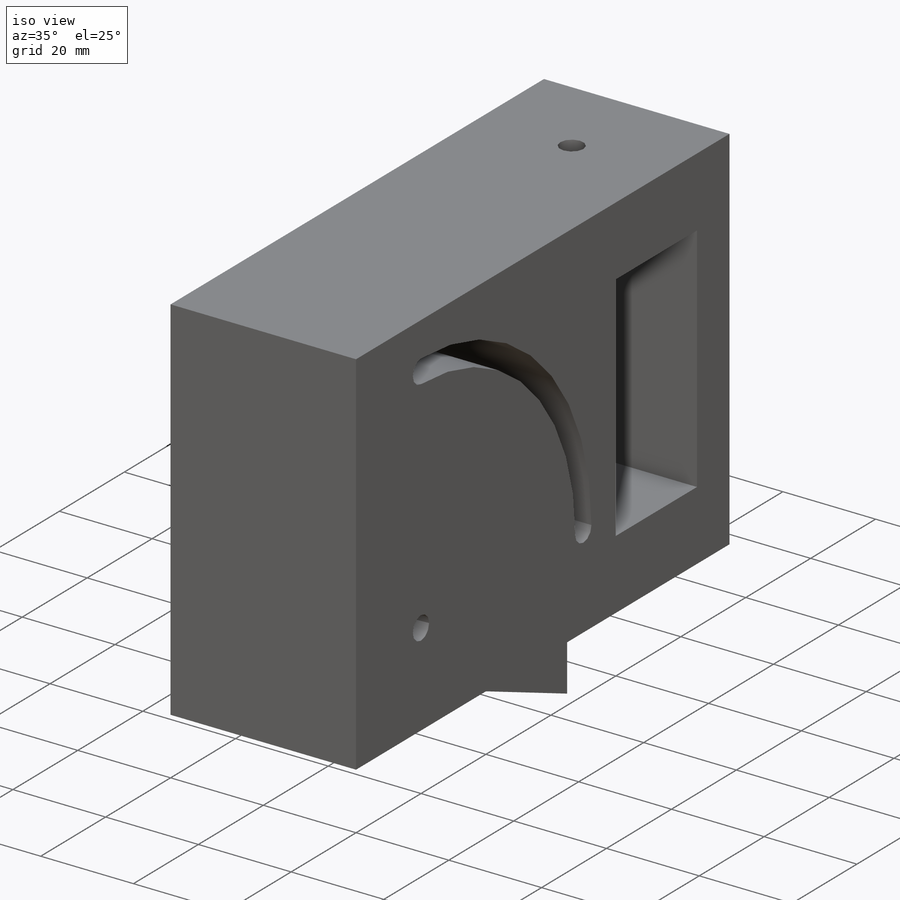
[diagram: iso view]
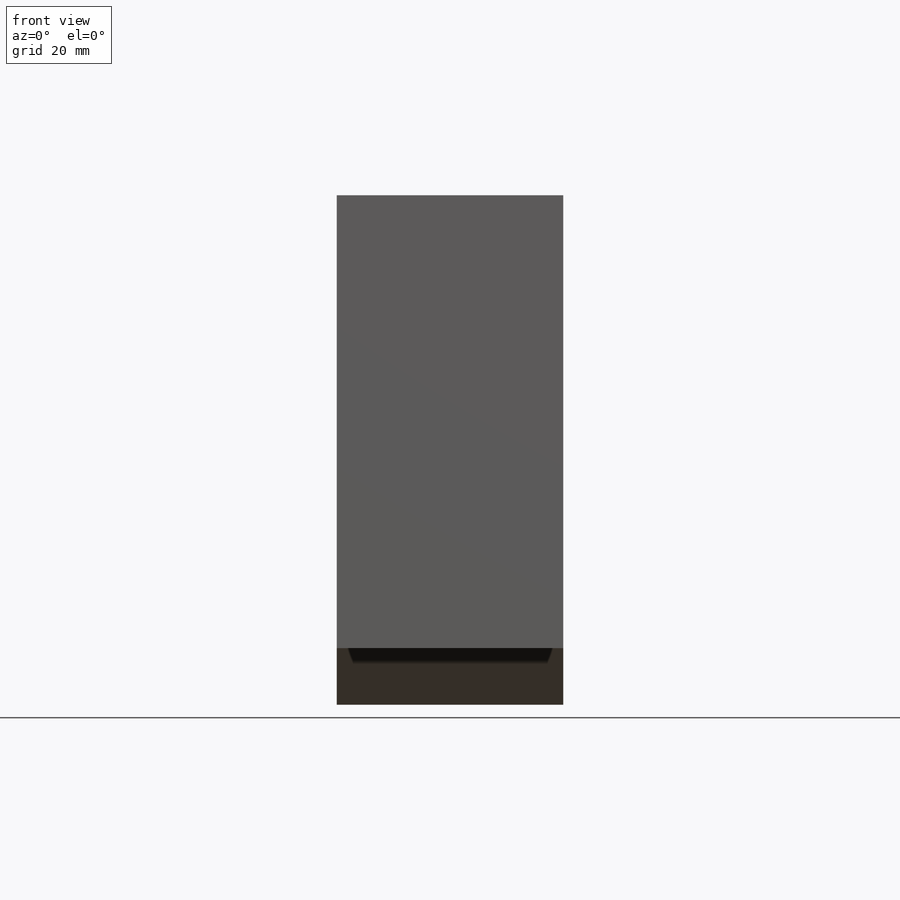
[diagram: front view]
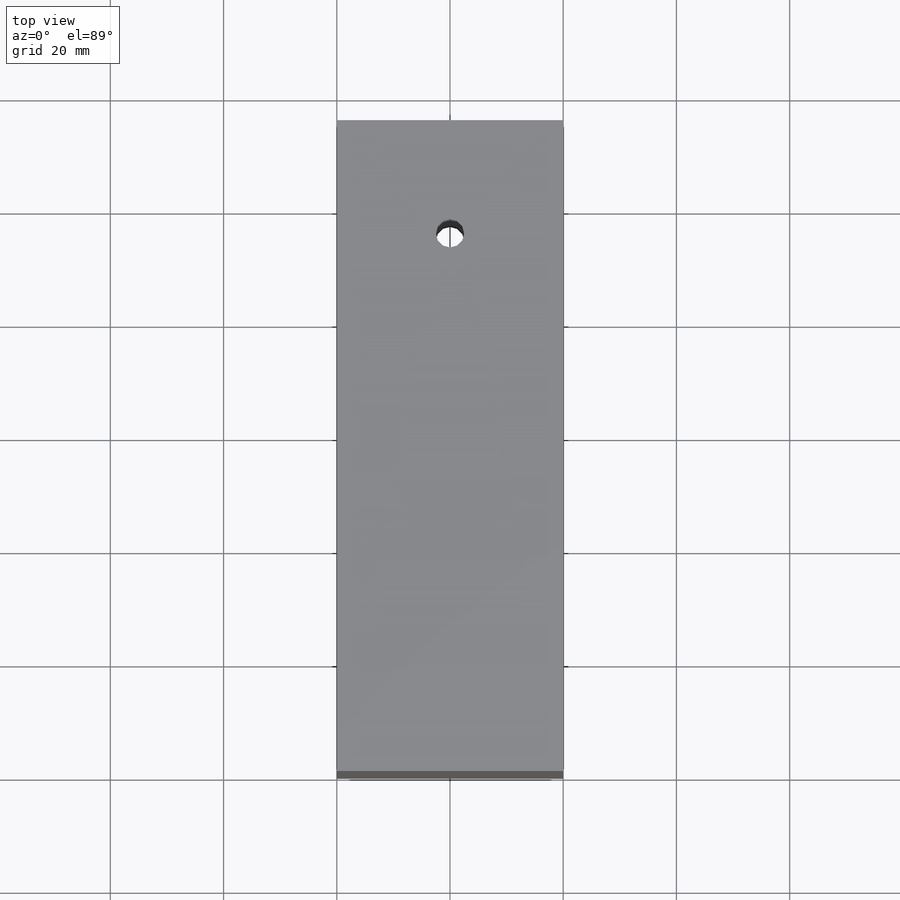
[diagram: top view]
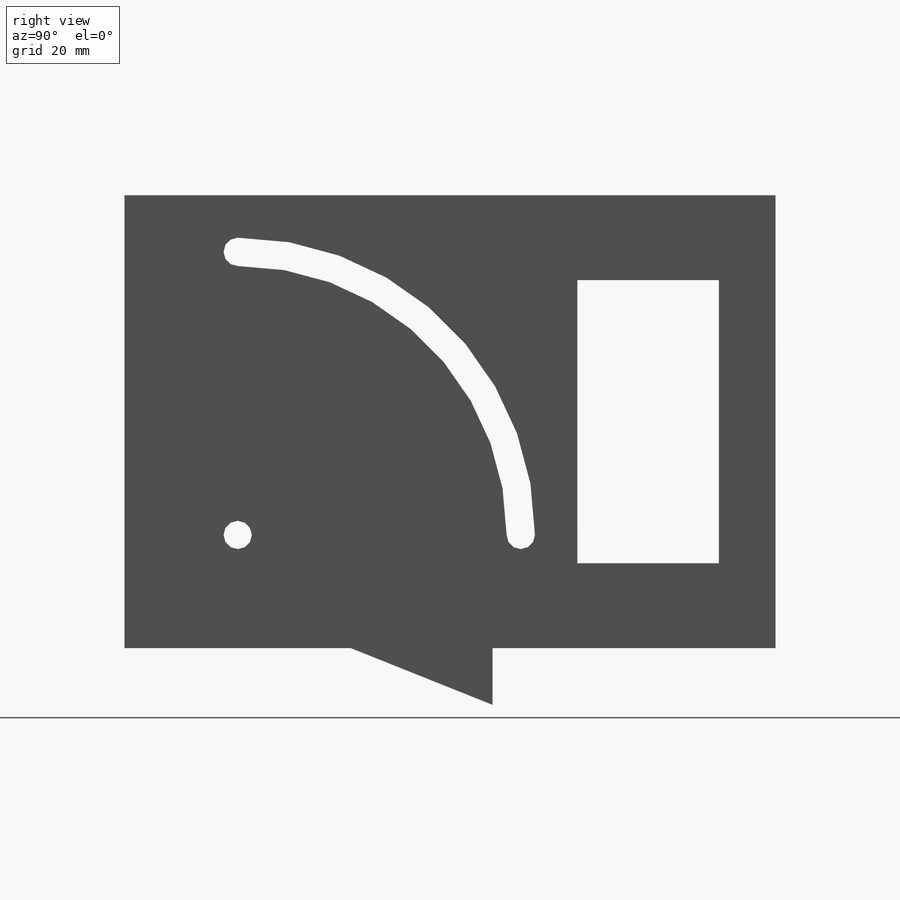
[diagram: right view]
SOLIDWORKS PART (.sldprt)
format: sldprt  version: not decoded by parser v0  size: 292,864 bytes
history: native  units: mm
features: sketch x12, plane x4, hole x3, extrude x2, cut_extrude x2, material x1 (+9 scaffold rows collapsed)
feature tree (33):
  scaffold x9  (default folders/planes/origin — collapsed)
  material  "Material <sin especificar>"
  plane  "Alzado"
  plane  "Planta"
  plane  "Vista lateral"
  plane  "Plano1"
  sketch  "Croquis1"
  extrude  "Saliente-Extruir1"  Depth=40mm
  sketch  "Croquis2"
  extrude  "Saliente-Extruir2"  Depth=50mm
  sketch  "Croquis3"
  cut_extrude  "Cortar-Extruir1"  Depth=40mm
  sketch  "Croquis4"  dims[D1=25.0mm D2=50.0mm]
  cut_extrude  "Cortar-Extruir2"  Depth=40mm
  hole  "Diámetro de taladro Ø5.0 (5)1"  Depth=25.000025mm  [1 undecoded]
  sketch  "Croquis6"
  sketch  "Croquis5"  dims[hole-wizard template sketch: 59 standard entries collapsed; hole parameters kept: c18.Diámetro de taladro hasta el siguiente=5.0mm c18.Profundidad de taladro hasta el siguiente=~25.000025mm]
  hole  "Diámetro de taladro Ø5.0 (5)2"  Depth=40.00005mm  [1 undecoded]
  sketch  "Croquis8"
  sketch  "Croquis7"  dims[hole-wizard template sketch: 59 standard entries collapsed; hole parameters kept: c18.Diámetro de taladro hasta el siguiente=5.0mm c18.Profundidad de taladro hasta el siguiente=~40.00005mm]
  hole  "Diámetro de taladro Ø5.0 (5)3"  Depth=90.000025mm  [1 undecoded]
  sketch  "Croquis10"
  sketch  "Croquis9"  dims[hole-wizard template sketch: 59 standard entries collapsed; hole parameters kept: c18.Diámetro de taladro hasta el siguiente=5.0mm c18.Profundidad de taladro hasta el siguiente=~90.000025mm]
  sketch  "Croquis12"  dims[D1=10.0mm D2=~19.478621mm]
  sketch  "Croquis13"  dims[D1=20.0mm]
decode coverage: 13 of 19 modeling features carry decoded parameters
note: ~ marks probable driven/reference dimensions
note: 3 parameter values undecoded
summary: no parameter record found for 3 features
note: suppression state not decoded; provenance and decode notes live in map.json
